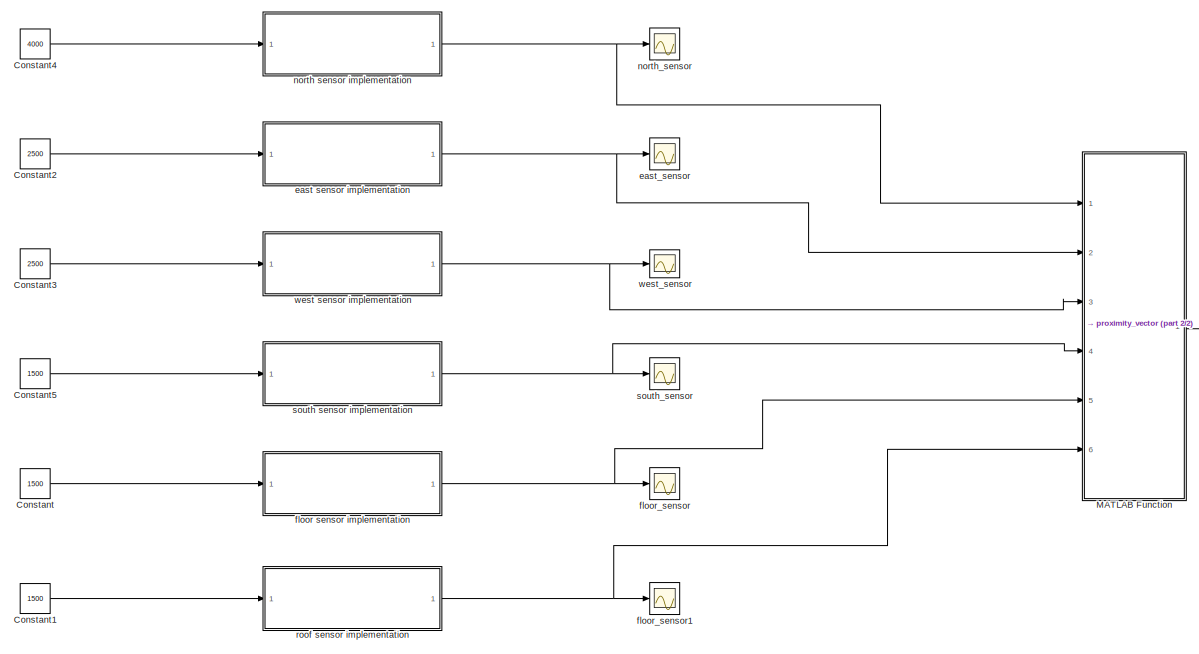
[diagram: root canvas - part 1/2, center side, full height]
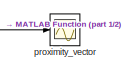
[diagram: root canvas - part 2/2, middle right region]
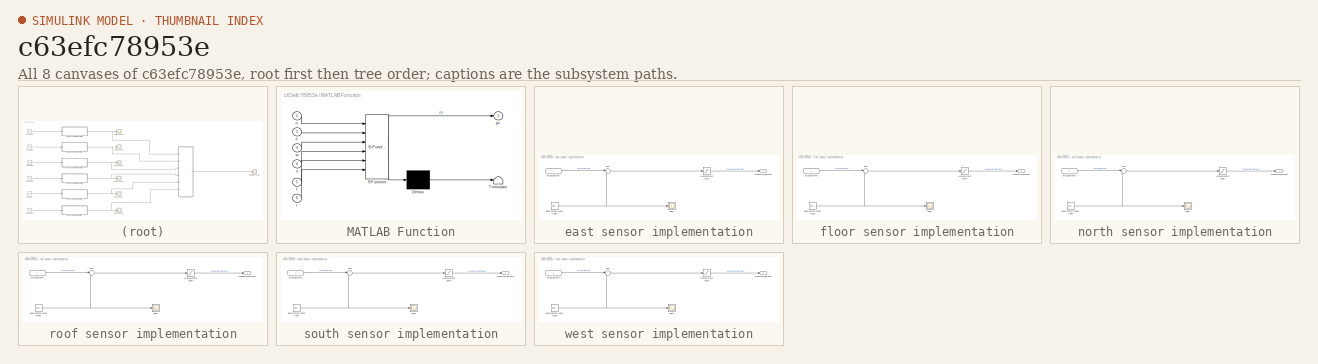
[diagram: thumbnail index - all 8 canvases of the model, root first then tree order]
MODEL slx_c63efc78953e
KIND model
CONFIG AbsTol = auto
CONFIG EnableMultiTasking = off
CONFIG FixedStep = auto
CONFIG MaxStep = auto
CONFIG MinStep = auto
CONFIG RelTol = 1e-3
CONFIG SampleTimeConstraint = Unconstrained
CONFIG Solver = VariableStepAuto
CONFIG SolverName = VariableStepAuto
CONFIG StartTime = 0.0
CONFIG StopTime = 1000
BLOCK [Constant] Constant
  Value = 1500
BLOCK [Constant] Constant1
  Value = 1500
BLOCK [Constant] Constant2
  Value = 2500
BLOCK [Constant] Constant3
  Value = 2500
BLOCK [Constant] Constant4
  Value = 4000
BLOCK [Constant] Constant5
  Value = 1500
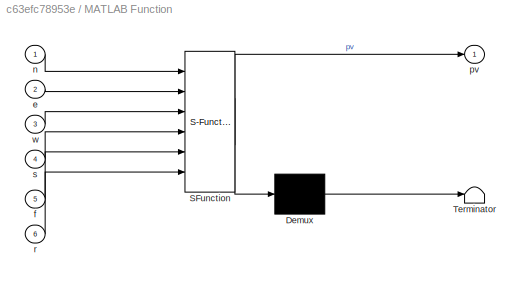
BLOCK [SubSystem] MATLAB Function
  ErrorFcn = Stateflow.Translate.translate
  PermitHierarchicalResolution = ExplicitOnly
  Ports = [6, 1]
  RequestExecContextInheritance = off
  SFBlockType = MATLAB Function
  TreatAsAtomicUnit = on
  Variant = off
BLOCK [Demux] MATLAB Function/ Demux 
  Outputs = 1
  Ports = [1, 1]
BLOCK [S-Function] MATLAB Function/ SFunction 
  EnableBusSupport = on
  FunctionName = sf_sfun
  PortCounts = [6 2]
  Ports = [6, 2]
  SFcnIsStateOwnerBlock = off
  SFunctionDeploymentMode = off
  Tag = Stateflow S-Function Sensor_Implementation 2
BLOCK [Terminator] MATLAB Function/ Terminator 
BLOCK [Inport] MATLAB Function/e
  IconDisplay = Port number
  Port = 2
BLOCK [Inport] MATLAB Function/f
  IconDisplay = Port number
  Port = 5
BLOCK [Inport] MATLAB Function/n
  IconDisplay = Port number
BLOCK [Outport] MATLAB Function/pv
  IconDisplay = Port number
BLOCK [Inport] MATLAB Function/r
  IconDisplay = Port number
  Port = 6
BLOCK [Inport] MATLAB Function/s
  IconDisplay = Port number
  Port = 4
BLOCK [Inport] MATLAB Function/w
  IconDisplay = Port number
  Port = 3
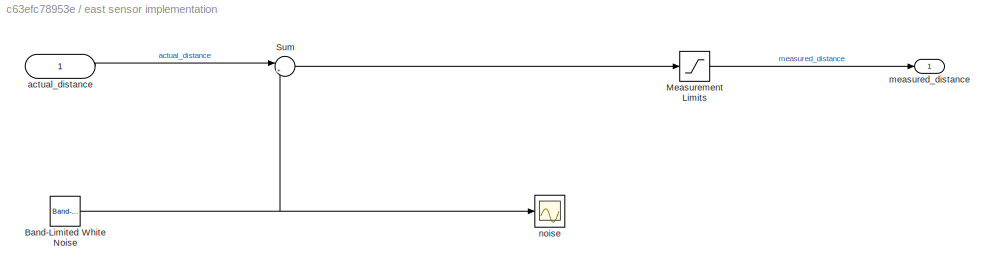
BLOCK [SubSystem] east sensor implementation
  Ports = [1, 1]
  RequestExecContextInheritance = off
  Variant = off
BLOCK [Reference] east sensor implementation/Band-Limited White Noise  REF=simulink/Sources/Band-Limited
White Noise
  Ports = [0, 1]
  SourceBlock = simulink/Sources/Band-Limited\nWhite Noise
  SourceProductBaseCode = SL
  SourceProductName = Simulink
  SourceType = Band-Limited White Noise.
BLOCK [Saturate] east sensor implementation/Measurement Limits
  InputPortMap = u0
  LowerLimit = 40
  Ports = [1, 1]
  UpperLimit = 4000
BLOCK [Sum] east sensor implementation/Sum
  IconShape = round
  InputSameDT = off
  Inputs = |++
  OutDataTypeStr = Inherit: Inherit via internal rule
  Ports = [2, 1]
  SaturateOnIntegerOverflow = off
BLOCK [Inport] east sensor implementation/actual_distance
  IconDisplay = Port number
BLOCK [Outport] east sensor implementation/measured_distance
  IconDisplay = Port number
BLOCK [Scope] east sensor implementation/noise
  NumInputPorts = 1
  Ports = [1]
  ScopeSpecificationString = Simulink.scopes.TimeScopeBlockCfg('CurrentConfiguration', extmgr.ConfigurationSet(extmgr.Configuration('Core','General UI',true),extmgr.Configuration('Core','Source UI',true),extmgr.Configuration('Sources','WiredSimulink',true),extmgr.Configuration('Visuals','Time Domain',true,'SerializedDisplays',{struct('MinYLimReal','-1.4676','MaxYLimReal','1.54881','YLabelReal','','MinYLimMag','0.00000','MaxYL...<+1372ch>  <repeated x6 — deduplicated; at blocks: noise>
BLOCK [Scope] east_sensor
  NumInputPorts = 1
  Ports = [1]
  ScopeSpecificationString = Simulink.scopes.TimeScopeBlockCfg('CurrentConfiguration', extmgr.ConfigurationSet(extmgr.Configuration('Core','General UI',true),extmgr.Configuration('Core','Source UI',true),extmgr.Configuration('Sources','WiredSimulink',true,'DataLoggingVariableName','ScopeData3'),extmgr.Configuration('Visuals','Time Domain',true,'SerializedDisplays',{struct('MinYLimReal','30.00000','MaxYLimReal','50.00000','YLa...<+1422ch>
BLOCK [SubSystem] floor sensor implementation
  Ports = [1, 1]
  RequestExecContextInheritance = off
  Variant = off
BLOCK [Reference] floor sensor implementation/Band-Limited White Noise  REF=simulink/Sources/Band-Limited
White Noise
  Ports = [0, 1]
  SourceBlock = simulink/Sources/Band-Limited\nWhite Noise
  SourceProductBaseCode = SL
  SourceProductName = Simulink
  SourceType = Band-Limited White Noise.
BLOCK [Saturate] floor sensor implementation/Measurement Limits
  InputPortMap = u0
  LowerLimit = 40
  Ports = [1, 1]
  UpperLimit = 4000
BLOCK [Sum] floor sensor implementation/Sum
  IconShape = round
  InputSameDT = off
  Inputs = |++
  OutDataTypeStr = Inherit: Inherit via internal rule
  Ports = [2, 1]
  SaturateOnIntegerOverflow = off
BLOCK [Inport] floor sensor implementation/actual_distance
  IconDisplay = Port number
BLOCK [Outport] floor sensor implementation/measured_distance
  IconDisplay = Port number
BLOCK [Scope] floor sensor implementation/noise
  NumInputPorts = 1
  Ports = [1]
BLOCK [Scope] floor_sensor
  NumInputPorts = 1
  Ports = [1]
  ScopeSpecificationString = Simulink.scopes.TimeScopeBlockCfg('CurrentConfiguration', extmgr.ConfigurationSet(extmgr.Configuration('Core','General UI',true),extmgr.Configuration('Core','Source UI',true),extmgr.Configuration('Sources','WiredSimulink',true,'DataLoggingVariableName','ScopeData1'),extmgr.Configuration('Visuals','Time Domain',true,'SerializedDisplays',{struct('MinYLimReal','2498.5324','MaxYLimReal','2501.54881','...<+1434ch>
BLOCK [Scope] floor_sensor1
  NumInputPorts = 1
  Ports = [1]
  ScopeSpecificationString = Simulink.scopes.TimeScopeBlockCfg('CurrentConfiguration', extmgr.ConfigurationSet(extmgr.Configuration('Core','General UI',true),extmgr.Configuration('Core','Source UI',true),extmgr.Configuration('Sources','WiredSimulink',true,'DataLoggingVariableName','ScopeData2'),extmgr.Configuration('Visuals','Time Domain',true,'SerializedDisplays',{struct('MinYLimReal','30.00000','MaxYLimReal','50.00000','YLa...<+1422ch>
BLOCK [SubSystem] north sensor implementation
  Ports = [1, 1]
  RequestExecContextInheritance = off
  Variant = off
BLOCK [Reference] north sensor implementation/Band-Limited White Noise  REF=simulink/Sources/Band-Limited
White Noise
  Ports = [0, 1]
  SourceBlock = simulink/Sources/Band-Limited\nWhite Noise
  SourceProductBaseCode = SL
  SourceProductName = Simulink
  SourceType = Band-Limited White Noise.
BLOCK [Saturate] north sensor implementation/Measurement Limits
  InputPortMap = u0
  LowerLimit = 40
  Ports = [1, 1]
  UpperLimit = 4000
BLOCK [Sum] north sensor implementation/Sum
  IconShape = round
  InputSameDT = off
  Inputs = |++
  OutDataTypeStr = Inherit: Inherit via internal rule
  Ports = [2, 1]
  SaturateOnIntegerOverflow = off
BLOCK [Inport] north sensor implementation/actual_distance
  IconDisplay = Port number
BLOCK [Outport] north sensor implementation/measured_distance
  IconDisplay = Port number
BLOCK [Scope] north sensor implementation/noise
  NumInputPorts = 1
  Ports = [1]
BLOCK [Scope] north_sensor
  NumInputPorts = 1
  Ports = [1]
  ScopeSpecificationString = Simulink.scopes.TimeScopeBlockCfg('CurrentConfiguration', extmgr.ConfigurationSet(extmgr.Configuration('Core','General UI',true),extmgr.Configuration('Core','Source UI',true),extmgr.Configuration('Sources','WiredSimulink',true,'DataLoggingVariableName','ScopeData5'),extmgr.Configuration('Visuals','Time Domain',true,'SerializedDisplays',{struct('MinYLimReal','30.00000','MaxYLimReal','50.00000','YLa...<+1422ch>
BLOCK [Scope] proximity_vector
  NumInputPorts = 1
  Ports = [1]
  ScopeSpecificationString = Simulink.scopes.TimeScopeBlockCfg('CurrentConfiguration', extmgr.ConfigurationSet(extmgr.Configuration('Core','General UI',true),extmgr.Configuration('Core','Source UI',true),extmgr.Configuration('Sources','WiredSimulink',true,'DataLoggingVariableName','ScopeData7'),extmgr.Configuration('Visuals','Time Domain',true,'SerializedDisplays',{struct('MinYLimReal','-312.5','MaxYLimReal','2812.5','YLabelR...<+1464ch>
BLOCK [SubSystem] roof sensor implementation
  Ports = [1, 1]
  RequestExecContextInheritance = off
  Variant = off
BLOCK [Reference] roof sensor implementation/Band-Limited White Noise  REF=simulink/Sources/Band-Limited
White Noise
  Ports = [0, 1]
  SourceBlock = simulink/Sources/Band-Limited\nWhite Noise
  SourceProductBaseCode = SL
  SourceProductName = Simulink
  SourceType = Band-Limited White Noise.
BLOCK [Saturate] roof sensor implementation/Measurement Limits
  InputPortMap = u0
  LowerLimit = 40
  Ports = [1, 1]
  UpperLimit = 4000
BLOCK [Sum] roof sensor implementation/Sum
  IconShape = round
  InputSameDT = off
  Inputs = |++
  OutDataTypeStr = Inherit: Inherit via internal rule
  Ports = [2, 1]
  SaturateOnIntegerOverflow = off
BLOCK [Inport] roof sensor implementation/actual_distance
  IconDisplay = Port number
BLOCK [Outport] roof sensor implementation/measured_distance
  IconDisplay = Port number
BLOCK [Scope] roof sensor implementation/noise
  NumInputPorts = 1
  Ports = [1]
BLOCK [SubSystem] south sensor implementation
  Ports = [1, 1]
  RequestExecContextInheritance = off
  Variant = off
BLOCK [Reference] south sensor implementation/Band-Limited White Noise  REF=simulink/Sources/Band-Limited
White Noise
  Ports = [0, 1]
  SourceBlock = simulink/Sources/Band-Limited\nWhite Noise
  SourceProductBaseCode = SL
  SourceProductName = Simulink
  SourceType = Band-Limited White Noise.
BLOCK [Saturate] south sensor implementation/Measurement Limits
  InputPortMap = u0
  LowerLimit = 40
  Ports = [1, 1]
  UpperLimit = 4000
BLOCK [Sum] south sensor implementation/Sum
  IconShape = round
  InputSameDT = off
  Inputs = |++
  OutDataTypeStr = Inherit: Inherit via internal rule
  Ports = [2, 1]
  SaturateOnIntegerOverflow = off
BLOCK [Inport] south sensor implementation/actual_distance
  IconDisplay = Port number
BLOCK [Outport] south sensor implementation/measured_distance
  IconDisplay = Port number
BLOCK [Scope] south sensor implementation/noise
  NumInputPorts = 1
  Ports = [1]
BLOCK [Scope] south_sensor
  NumInputPorts = 1
  Ports = [1]
  ScopeSpecificationString = Simulink.scopes.TimeScopeBlockCfg('CurrentConfiguration', extmgr.ConfigurationSet(extmgr.Configuration('Core','General UI',true),extmgr.Configuration('Core','Source UI',true),extmgr.Configuration('Sources','WiredSimulink',true,'DataLoggingVariableName','ScopeData6'),extmgr.Configuration('Visuals','Time Domain',true,'SerializedDisplays',{struct('MinYLimReal','30.00000','MaxYLimReal','50.00000','YLa...<+1422ch>
BLOCK [SubSystem] west sensor implementation
  Ports = [1, 1]
  RequestExecContextInheritance = off
  Variant = off
BLOCK [Reference] west sensor implementation/Band-Limited White Noise  REF=simulink/Sources/Band-Limited
White Noise
  Ports = [0, 1]
  SourceBlock = simulink/Sources/Band-Limited\nWhite Noise
  SourceProductBaseCode = SL
  SourceProductName = Simulink
  SourceType = Band-Limited White Noise.
BLOCK [Saturate] west sensor implementation/Measurement Limits
  InputPortMap = u0
  LowerLimit = 40
  Ports = [1, 1]
  UpperLimit = 4000
BLOCK [Sum] west sensor implementation/Sum
  IconShape = round
  InputSameDT = off
  Inputs = |++
  OutDataTypeStr = Inherit: Inherit via internal rule
  Ports = [2, 1]
  SaturateOnIntegerOverflow = off
BLOCK [Inport] west sensor implementation/actual_distance
  IconDisplay = Port number
BLOCK [Outport] west sensor implementation/measured_distance
  IconDisplay = Port number
BLOCK [Scope] west sensor implementation/noise
  NumInputPorts = 1
  Ports = [1]
BLOCK [Scope] west_sensor
  NumInputPorts = 1
  Ports = [1]
  ScopeSpecificationString = Simulink.scopes.TimeScopeBlockCfg('CurrentConfiguration', extmgr.ConfigurationSet(extmgr.Configuration('Core','General UI',true),extmgr.Configuration('Core','Source UI',true),extmgr.Configuration('Sources','WiredSimulink',true,'DataLoggingVariableName','ScopeData4'),extmgr.Configuration('Visuals','Time Domain',true,'SerializedDisplays',{struct('MinYLimReal','30.00000','MaxYLimReal','50.00000','YLa...<+1422ch>
LINE Constant1:1 -> roof sensor implementation:1
LINE Constant2:1 -> east sensor implementation:1
LINE Constant3:1 -> west sensor implementation:1
LINE Constant4:1 -> north sensor implementation:1
LINE Constant5:1 -> south sensor implementation:1
LINE Constant:1 -> floor sensor implementation:1
LINE MATLAB Function:1 -> proximity_vector:1
NET east sensor implementation/Band-Limited White Noise:1 -> east sensor implementation/Sum:2, east sensor implementation/noise:1
LINE east sensor implementation/Measurement Limits:1 -> east sensor implementation/measured_distance:1
LINE east sensor implementation/Sum:1 -> east sensor implementation/Measurement Limits:1
LINE east sensor implementation/actual_distance:1 -> east sensor implementation/Sum:1
NET east sensor implementation:1 -> MATLAB Function:2, east_sensor:1
NET floor sensor implementation/Band-Limited White Noise:1 -> floor sensor implementation/Sum:2, floor sensor implementation/noise:1
LINE floor sensor implementation/Measurement Limits:1 -> floor sensor implementation/measured_distance:1
LINE floor sensor implementation/Sum:1 -> floor sensor implementation/Measurement Limits:1
LINE floor sensor implementation/actual_distance:1 -> floor sensor implementation/Sum:1
NET floor sensor implementation:1 -> MATLAB Function:5, floor_sensor:1
NET north sensor implementation/Band-Limited White Noise:1 -> north sensor implementation/Sum:2, north sensor implementation/noise:1
LINE north sensor implementation/Measurement Limits:1 -> north sensor implementation/measured_distance:1
LINE north sensor implementation/Sum:1 -> north sensor implementation/Measurement Limits:1
LINE north sensor implementation/actual_distance:1 -> north sensor implementation/Sum:1
NET north sensor implementation:1 -> MATLAB Function:1, north_sensor:1
NET roof sensor implementation/Band-Limited White Noise:1 -> roof sensor implementation/Sum:2, roof sensor implementation/noise:1
LINE roof sensor implementation/Measurement Limits:1 -> roof sensor implementation/measured_distance:1
LINE roof sensor implementation/Sum:1 -> roof sensor implementation/Measurement Limits:1
LINE roof sensor implementation/actual_distance:1 -> roof sensor implementation/Sum:1
NET roof sensor implementation:1 -> MATLAB Function:6, floor_sensor1:1
NET south sensor implementation/Band-Limited White Noise:1 -> south sensor implementation/Sum:2, south sensor implementation/noise:1
LINE south sensor implementation/Measurement Limits:1 -> south sensor implementation/measured_distance:1
LINE south sensor implementation/Sum:1 -> south sensor implementation/Measurement Limits:1
LINE south sensor implementation/actual_distance:1 -> south sensor implementation/Sum:1
NET south sensor implementation:1 -> MATLAB Function:4, south_sensor:1
NET west sensor implementation/Band-Limited White Noise:1 -> west sensor implementation/Sum:2, west sensor implementation/noise:1
LINE west sensor implementation/Measurement Limits:1 -> west sensor implementation/measured_distance:1
LINE west sensor implementation/Sum:1 -> west sensor implementation/Measurement Limits:1
LINE west sensor implementation/actual_distance:1 -> west sensor implementation/Sum:1
NET west sensor implementation:1 -> MATLAB Function:3, west_sensor:1
note: NET lines group one-source signal fan-out (src -> all destinations, sorted); 1:1 wires keep LINE
CHART MATLAB Function states=1 transitions=1
  STATE_LABEL 'eML_blk_kernel()'
  STATE_LABEL 'SCRIPT:\nfunction pv = proximityVector(n, e, w, s, f, r)\n\n\nx = n-s;\ny = e-w;\nz = f-r;\n\npv = [x y z];\n'
